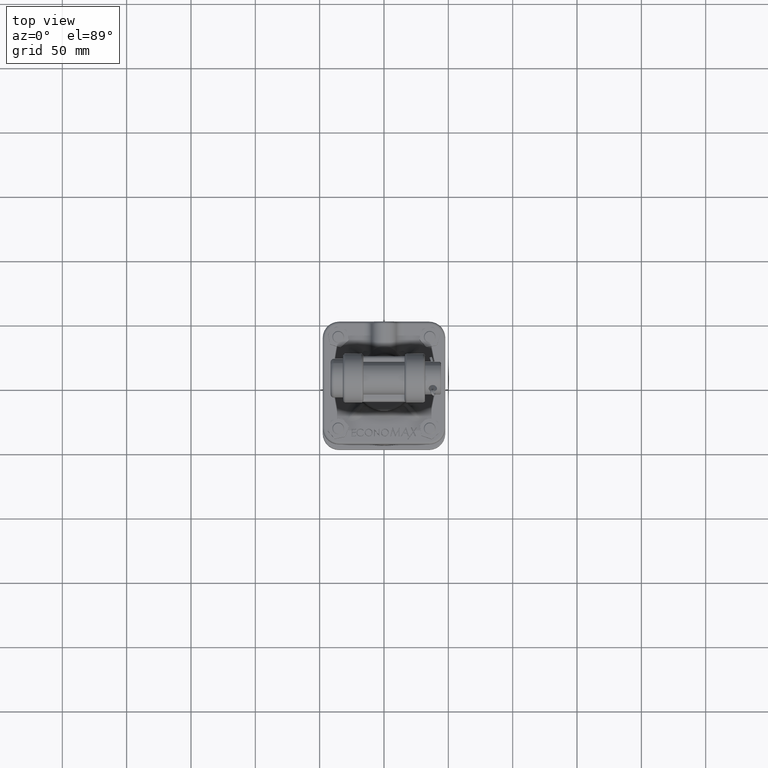
[diagram: clean part render]
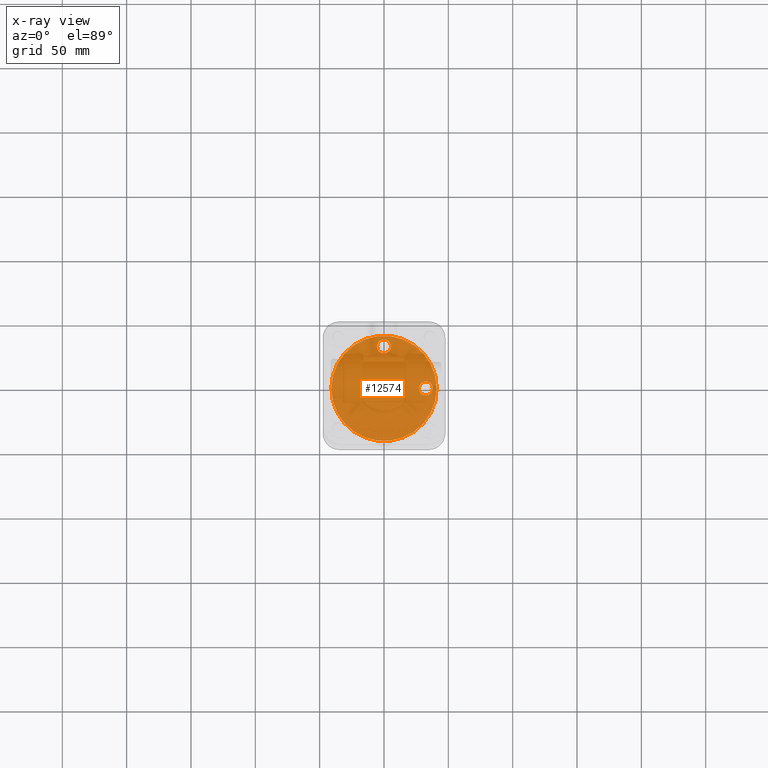
[diagram: x-ray — body ghosted, one internal face saturated and labeled with its STEP entity id]
A machine part, top view, then the same camera in x-ray: the body is ghosted and one INTERNAL B-rep face — a face not visible from any outside direction — is saturated and labeled: STEP entity #12574.
In plain terms, the highlighted planar face has unit normal (0, 0, 1).
Its self-contained STEP definition (entity closure, byte-faithful):
#351 = DIRECTION ( 'NONE',  ( -0.000000000000000000, 0.000000000000000000, -1.000000000000000000 ) ) ;
#1512 = VERTEX_POINT ( 'NONE', #25910 ) ;
#1643 = ORIENTED_EDGE ( 'NONE', *, *, #43995, .T. ) ;
#1810 = VERTEX_POINT ( 'NONE', #10419 ) ;
#2537 = CARTESIAN_POINT ( 'NONE',  ( 0.000000000000000000, 1.280999999999999694, 0.000000000000000000 ) ) ;
#2593 = CARTESIAN_POINT ( 'NONE',  ( 0.000000000000000000, 0.000000000000000000, 0.000000000000000000 ) ) ;
#2707 = EDGE_LOOP ( 'NONE', ( #38953, #42464 ) ) ;
#2899 = EDGE_CURVE ( 'NONE', #39799, #12377, #11059, .T. ) ;
#3621 = DIRECTION ( 'NONE',  ( 1.000000000000000000, 0.000000000000000000, -0.000000000000000000 ) ) ;
#3835 = DIRECTION ( 'NONE',  ( 0.000000000000000000, -0.000000000000000000, 1.000000000000000000 ) ) ;
#4509 = CIRCLE ( 'NONE', #26742, 0.2104662748368671676 ) ;
#4860 = DIRECTION ( 'NONE',  ( 1.000000000000000000, 0.000000000000000000, 0.000000000000000000 ) ) ;
#4922 = AXIS2_PLACEMENT_3D ( 'NONE', #36247, #11125, #4860 ) ;
#4983 = CIRCLE ( 'NONE', #32168, 1.611000000000000210 ) ;
#5506 = EDGE_CURVE ( 'NONE', #1512, #19091, #22432, .T. ) ;
#6614 = CARTESIAN_POINT ( 'NONE',  ( 0.000000000000000000, 0.000000000000000000, 0.000000000000000000 ) ) ;
#7080 = FACE_BOUND ( 'NONE', #31727, .T. ) ;
#7577 = ORIENTED_EDGE ( 'NONE', *, *, #17338, .T. ) ;
#10306 = EDGE_CURVE ( 'NONE', #15904, #1810, #4509, .T. ) ;
#10419 = CARTESIAN_POINT ( 'NONE',  ( 1.491466274836867001, 0.000000000000000000, 0.000000000000000000 ) ) ;
#10859 = CARTESIAN_POINT ( 'NONE',  ( 1.070533725163132610, 2.577468498074366964E-17, 0.000000000000000000 ) ) ;
#11059 = CIRCLE ( 'NONE', #23514, 0.2104662748368673064 ) ;
#11125 = DIRECTION ( 'NONE',  ( -0.000000000000000000, 0.000000000000000000, -1.000000000000000000 ) ) ;
#11669 = DIRECTION ( 'NONE',  ( 1.000000000000000000, 0.000000000000000000, 0.000000000000000000 ) ) ;
#12024 = CIRCLE ( 'NONE', #34135, 0.2104662748368673064 ) ;
#12377 = VERTEX_POINT ( 'NONE', #41262 ) ;
#12574 = ADVANCED_FACE ( 'NONE', ( #31559, #7080, #14017, #42162 ), #21168, .T. ) ;
#13517 = EDGE_CURVE ( 'NONE', #19091, #1512, #38854, .T. ) ;
#13816 = ORIENTED_EDGE ( 'NONE', *, *, #27289, .T. ) ;
#14017 = FACE_BOUND ( 'NONE', #2707, .T. ) ;
#14727 = CARTESIAN_POINT ( 'NONE',  ( 0.2104662748368673064, 1.280999999999999694, 0.000000000000000000 ) ) ;
#15216 = AXIS2_PLACEMENT_3D ( 'NONE', #35239, #3835, #3621 ) ;
#15904 = VERTEX_POINT ( 'NONE', #10859 ) ;
#16016 = CIRCLE ( 'NONE', #22631, 0.2104662748368671676 ) ;
#16382 = DIRECTION ( 'NONE',  ( -0.000000000000000000, 0.000000000000000000, -1.000000000000000000 ) ) ;
#16436 = DIRECTION ( 'NONE',  ( 1.000000000000000000, 0.000000000000000000, 0.000000000000000000 ) ) ;
#17338 = EDGE_CURVE ( 'NONE', #34810, #34168, #43466, .T. ) ;
#17686 = DIRECTION ( 'NONE',  ( -0.000000000000000000, -0.000000000000000000, 1.000000000000000000 ) ) ;
#17904 = CARTESIAN_POINT ( 'NONE',  ( 1.280999999999999694, 0.000000000000000000, 0.000000000000000000 ) ) ;
#18743 = ORIENTED_EDGE ( 'NONE', *, *, #45636, .T. ) ;
#19091 = VERTEX_POINT ( 'NONE', #19833 ) ;
#19833 = CARTESIAN_POINT ( 'NONE',  ( 0.2699831374184336052, 0.000000000000000000, 0.000000000000000000 ) ) ;
#21168 = PLANE ( 'NONE',  #15216 ) ;
#21353 = AXIS2_PLACEMENT_3D ( 'NONE', #6614, #17686, #45156 ) ;
#22432 = CIRCLE ( 'NONE', #25368, 0.2699831374184336052 ) ;
#22448 = ORIENTED_EDGE ( 'NONE', *, *, #2899, .T. ) ;
#22631 = AXIS2_PLACEMENT_3D ( 'NONE', #43281, #25532, #11669 ) ;
#23514 = AXIS2_PLACEMENT_3D ( 'NONE', #45604, #351, #25276 ) ;
#23794 = DIRECTION ( 'NONE',  ( -0.000000000000000000, -0.000000000000000000, 1.000000000000000000 ) ) ;
#25276 = DIRECTION ( 'NONE',  ( 1.000000000000000000, 0.000000000000000000, 0.000000000000000000 ) ) ;
#25368 = AXIS2_PLACEMENT_3D ( 'NONE', #2593, #38579, #16436 ) ;
#25532 = DIRECTION ( 'NONE',  ( -0.000000000000000000, 0.000000000000000000, -1.000000000000000000 ) ) ;
#25910 = CARTESIAN_POINT ( 'NONE',  ( -0.2699831374184336052, 3.306339850632447121E-17, 0.000000000000000000 ) ) ;
#25968 = DIRECTION ( 'NONE',  ( 1.000000000000000000, 0.000000000000000000, 0.000000000000000000 ) ) ;
#26742 = AXIS2_PLACEMENT_3D ( 'NONE', #17904, #28513, #25968 ) ;
#26783 = DIRECTION ( 'NONE',  ( 1.000000000000000000, 0.000000000000000000, 0.000000000000000000 ) ) ;
#27036 = CARTESIAN_POINT ( 'NONE',  ( -1.611000000000000210, 1.979029227422122838E-16, 0.000000000000000000 ) ) ;
#27233 = EDGE_LOOP ( 'NONE', ( #18743, #7577 ) ) ;
#27289 = EDGE_CURVE ( 'NONE', #12377, #39799, #12024, .T. ) ;
#28513 = DIRECTION ( 'NONE',  ( -0.000000000000000000, 0.000000000000000000, -1.000000000000000000 ) ) ;
#28989 = ORIENTED_EDGE ( 'NONE', *, *, #10306, .T. ) ;
#30683 = DIRECTION ( 'NONE',  ( 1.000000000000000000, 0.000000000000000000, 0.000000000000000000 ) ) ;
#31559 = FACE_BOUND ( 'NONE', #37353, .T. ) ;
#31727 = EDGE_LOOP ( 'NONE', ( #1643, #28989 ) ) ;
#32168 = AXIS2_PLACEMENT_3D ( 'NONE', #40856, #23794, #26783 ) ;
#34135 = AXIS2_PLACEMENT_3D ( 'NONE', #2537, #16382, #30683 ) ;
#34168 = VERTEX_POINT ( 'NONE', #35026 ) ;
#34810 = VERTEX_POINT ( 'NONE', #27036 ) ;
#35026 = CARTESIAN_POINT ( 'NONE',  ( 1.611000000000000210, 0.000000000000000000, 0.000000000000000000 ) ) ;
#35239 = CARTESIAN_POINT ( 'NONE',  ( 0.000000000000000000, 0.000000000000000000, 0.000000000000000000 ) ) ;
#36247 = CARTESIAN_POINT ( 'NONE',  ( 0.000000000000000000, 0.000000000000000000, 0.000000000000000000 ) ) ;
#37353 = EDGE_LOOP ( 'NONE', ( #22448, #13816 ) ) ;
#38579 = DIRECTION ( 'NONE',  ( -0.000000000000000000, 0.000000000000000000, -1.000000000000000000 ) ) ;
#38854 = CIRCLE ( 'NONE', #4922, 0.2699831374184336052 ) ;
#38953 = ORIENTED_EDGE ( 'NONE', *, *, #13517, .T. ) ;
#39799 = VERTEX_POINT ( 'NONE', #14727 ) ;
#40856 = CARTESIAN_POINT ( 'NONE',  ( 0.000000000000000000, 0.000000000000000000, 0.000000000000000000 ) ) ;
#41262 = CARTESIAN_POINT ( 'NONE',  ( -0.2104662748368673064, 1.280999999999999694, 0.000000000000000000 ) ) ;
#42162 = FACE_OUTER_BOUND ( 'NONE', #27233, .T. ) ;
#42464 = ORIENTED_EDGE ( 'NONE', *, *, #5506, .T. ) ;
#43281 = CARTESIAN_POINT ( 'NONE',  ( 1.280999999999999694, 0.000000000000000000, 0.000000000000000000 ) ) ;
#43466 = CIRCLE ( 'NONE', #21353, 1.611000000000000210 ) ;
#43995 = EDGE_CURVE ( 'NONE', #1810, #15904, #16016, .T. ) ;
#45156 = DIRECTION ( 'NONE',  ( 1.000000000000000000, 0.000000000000000000, 0.000000000000000000 ) ) ;
#45604 = CARTESIAN_POINT ( 'NONE',  ( 0.000000000000000000, 1.280999999999999694, 0.000000000000000000 ) ) ;
#45636 = EDGE_CURVE ( 'NONE', #34168, #34810, #4983, .T. ) ;